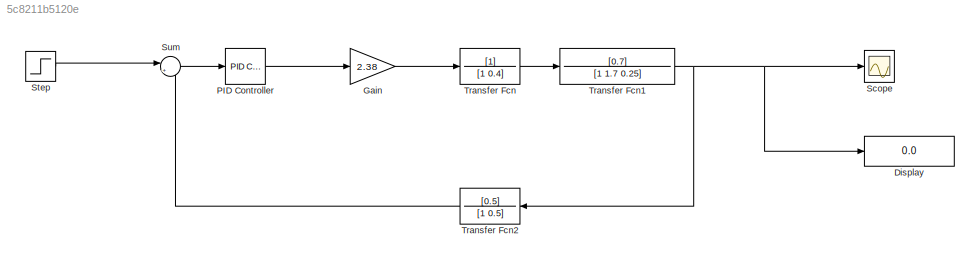
MODEL slx_5c8211b5120e
KIND model
CONFIG AbsTol = auto
CONFIG EnableMultiTasking = off
CONFIG FixedStep = auto
CONFIG MaxStep = auto
CONFIG MinStep = auto
CONFIG RelTol = 1e-3
CONFIG SampleTimeConstraint = Unconstrained
CONFIG SolverName = VariableStepAuto
CONFIG StartTime = 0.0
CONFIG StopTime = 30.0
BLOCK [Display] Display
  Decimation = 1
  Format = long
BLOCK [Gain] Gain
  Gain = 2.38
BLOCK [Reference] PID Controller  REF=slpidlib/PID Controller
  LibrarySourceBlock = simulink/Continuous/PID Controller
  SourceBlock = slpidlib/PID Controller
  SourceType = PID 1dof
BLOCK [Scope] Scope
  Floating = off
  NumInputPorts = 1
  ScopeSpecificationString = Simulink.scopes.TimeScopeBlockCfg('CurrentConfiguration', extmgr.ConfigurationSet(extmgr.Configuration('Core','General UI',true),extmgr.Configuration('Core','Source UI',true),extmgr.Configuration('Sources','WiredSimulink',true),extmgr.Configuration('Visuals','Time Domain',true,'SerializedDisplays',{struct('MinYLimReal','-4664415661240745984.00000','MaxYLimReal','41979740951166722048.00000','YLabel...<+1506ch>
BLOCK [Step] Step
  After = 40
  SampleTime = 0
  Time = 0
BLOCK [Sum] Sum
  Inputs = |+-
BLOCK [TransferFcn] Transfer Fcn
  Denominator = [1 0.4]
BLOCK [TransferFcn] Transfer Fcn1
  Denominator = [1 1.7 0.25]
  Numerator = [0.7]
BLOCK [TransferFcn] Transfer Fcn2
  Denominator = [1 0.5]
  Numerator = [0.5]
LINE Gain:1 -> Transfer Fcn:1
LINE PID Controller:1 -> Gain:1
LINE Step:1 -> Sum:1
LINE Sum:1 -> PID Controller:1
NET Transfer Fcn1:1 -> Display:1, Scope:1, Transfer Fcn2:1
LINE Transfer Fcn2:1 -> Sum:2
LINE Transfer Fcn:1 -> Transfer Fcn1:1
note: NET lines group one-source signal fan-out (src -> all destinations, sorted); 1:1 wires keep LINE
